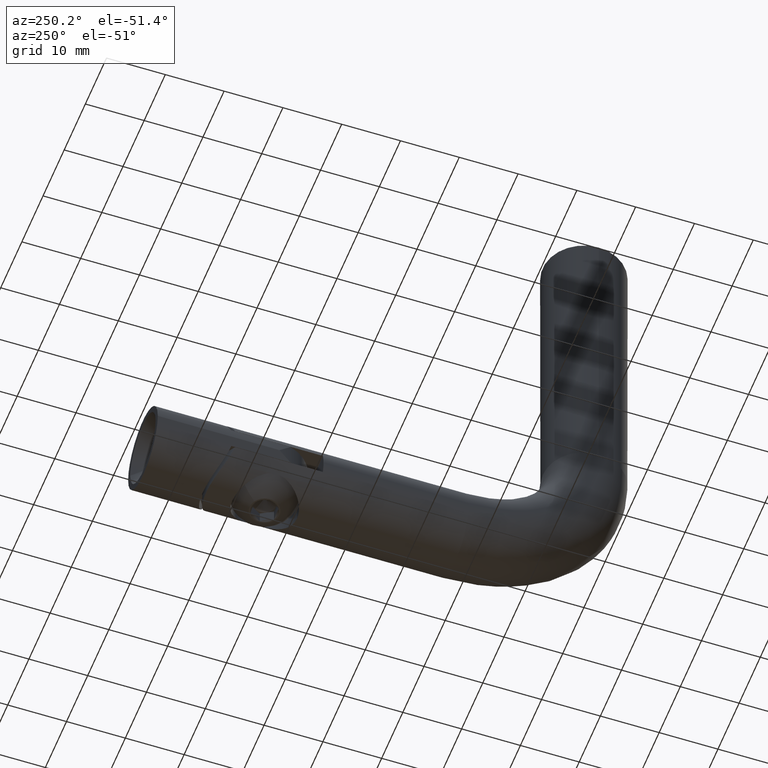
[diagram: clean part render]
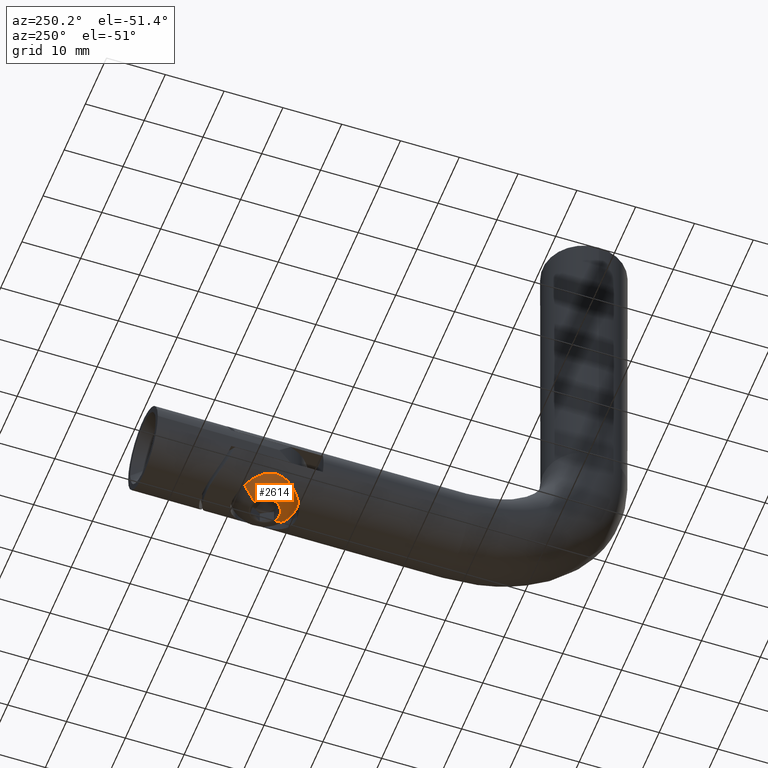
[diagram: same view with one face highlighted and labeled with its STEP entity id]
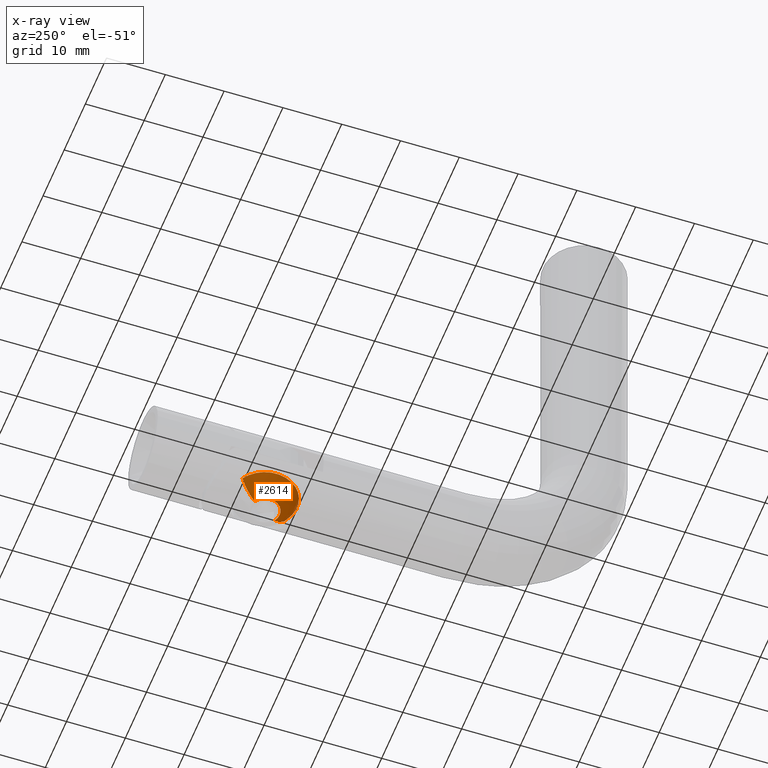
[diagram: x-ray of the same camera — body ghosted, the highlighted face saturated]
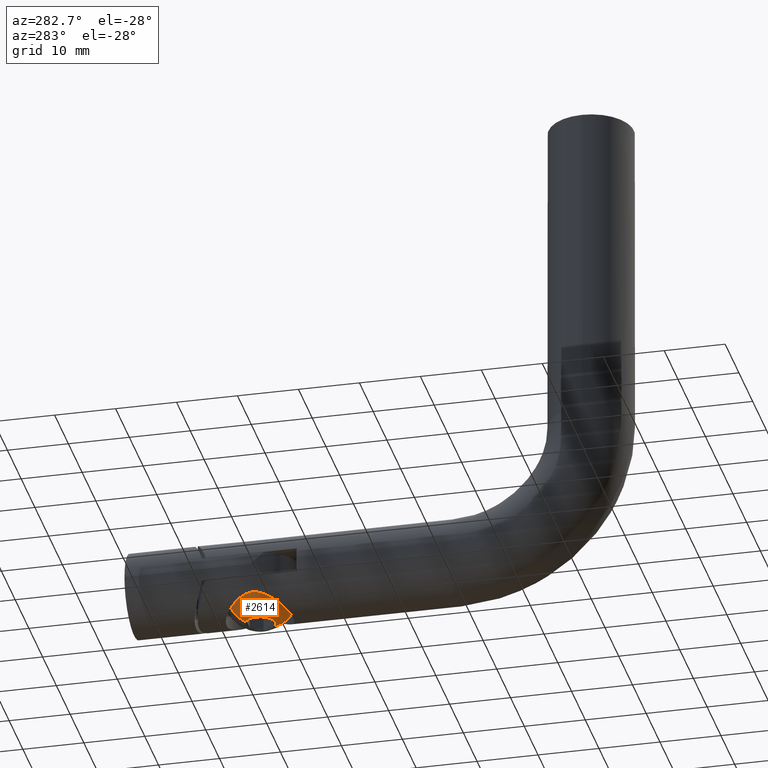
[diagram: same view with one face highlighted and labeled with its STEP entity id]
A machine part, auxiliary view. The second image highlights one B-rep face of the part: STEP entity #2614.
The next image is the same camera in x-ray: the body ghosted, the highlighted face saturated — about 0% of this face is hidden behind the body in this view.
A second angle (auxiliary view) of the same face is appended — the face is thin or edge-on in the first view.
In plain terms, the highlighted spherical surface has radius 5.9808 mm.
Its self-contained STEP definition (entity closure, byte-faithful):
#186 = ORIENTED_EDGE ( 'NONE', *, *, #10918, .T. ) ;
#794 = AXIS2_PLACEMENT_3D ( 'NONE', #5031, #14496, #13353 ) ;
#878 = CIRCLE ( 'NONE', #3665, 5.499999999999999112 ) ;
#1717 = CARTESIAN_POINT ( 'NONE',  ( 0.000000000000000000, 5.410897076899054525, 0.000000000000000000 ) ) ;
#2001 = DIRECTION ( 'NONE',  ( 0.000000000000000000, -1.000000000000000000, 0.000000000000000000 ) ) ;
#2245 = ORIENTED_EDGE ( 'NONE', *, *, #9765, .F. ) ;
#2614 = ADVANCED_FACE ( 'NONE', ( #3941 ), #9793, .T. ) ;
#2873 = CARTESIAN_POINT ( 'NONE',  ( 0.000000000000000000, 3.061350000000004457, 0.000000000000000000 ) ) ;
#2879 = CARTESIAN_POINT ( 'NONE',  ( -2.548051076758502731, 0.000000000000000000, 4.928009995263354294E-16 ) ) ;
#2986 = DIRECTION ( 'NONE',  ( 9.030652045888136138E-37, 0.000000000000000000, 1.000000000000000000 ) ) ;
#3168 = CARTESIAN_POINT ( 'NONE',  ( 0.000000000000000000, 0.000000000000000000, 0.000000000000000000 ) ) ;
#3665 = AXIS2_PLACEMENT_3D ( 'NONE', #2873, #8536, #7368 ) ;
#3814 = EDGE_LOOP ( 'NONE', ( #9676, #186, #12417, #14777, #2245 ) ) ;
#3941 = FACE_OUTER_BOUND ( 'NONE', #3814, .T. ) ;
#3976 = CARTESIAN_POINT ( 'NONE',  ( 5.500000000000000000, 3.061350000000004457, -4.966858625238474792E-36 ) ) ;
#4288 = AXIS2_PLACEMENT_3D ( 'NONE', #8721, #12376, #12427 ) ;
#4358 = CIRCLE ( 'NONE', #794, 5.980833676550860289 ) ;
#4636 = AXIS2_PLACEMENT_3D ( 'NONE', #8848, #2986, #12342 ) ;
#4799 = VERTEX_POINT ( 'NONE', #6477 ) ;
#5031 = CARTESIAN_POINT ( 'NONE',  ( 0.000000000000000000, 5.410897076899054525, 0.000000000000000000 ) ) ;
#5804 = CIRCLE ( 'NONE', #4288, 5.499999999999999112 ) ;
#6477 = CARTESIAN_POINT ( 'NONE',  ( 2.548051076758502731, 0.000000000000000000, -3.633957446087069283E-36 ) ) ;
#7368 = DIRECTION ( 'NONE',  ( 9.030652045888134467E-37, 0.000000000000000000, -1.000000000000000000 ) ) ;
#7788 = VERTEX_POINT ( 'NONE', #9232 ) ;
#8536 = DIRECTION ( 'NONE',  ( 0.000000000000000000, -1.000000000000000000, 0.000000000000000000 ) ) ;
#8721 = CARTESIAN_POINT ( 'NONE',  ( 0.000000000000000000, 3.061350000000004457, 0.000000000000000000 ) ) ;
#8740 = DIRECTION ( 'NONE',  ( -9.030652045888136138E-37, -0.000000000000000000, -1.000000000000000000 ) ) ;
#8848 = CARTESIAN_POINT ( 'NONE',  ( 0.000000000000000000, 5.410897076899054525, 0.000000000000000000 ) ) ;
#9201 = EDGE_CURVE ( 'NONE', #13824, #4799, #13710, .T. ) ;
#9232 = CARTESIAN_POINT ( 'NONE',  ( -5.500000000000000000, 3.061350000000004457, 6.735557395310442023E-16 ) ) ;
#9666 = CARTESIAN_POINT ( 'NONE',  ( 4.966858625238474792E-36, 3.061350000000004457, -5.500000000000000000 ) ) ;
#9676 = ORIENTED_EDGE ( 'NONE', *, *, #10968, .F. ) ;
#9765 = EDGE_CURVE ( 'NONE', #13038, #4799, #13166, .T. ) ;
#9793 = SPHERICAL_SURFACE ( 'NONE', #4636, 5.980833676550860289 ) ;
#10918 = EDGE_CURVE ( 'NONE', #7788, #13465, #878, .T. ) ;
#10968 = EDGE_CURVE ( 'NONE', #7788, #13038, #4358, .T. ) ;
#11279 = DIRECTION ( 'NONE',  ( 9.030652045888136138E-37, 0.000000000000000000, -1.000000000000000000 ) ) ;
#11870 = AXIS2_PLACEMENT_3D ( 'NONE', #1717, #8740, #13364 ) ;
#12342 = DIRECTION ( 'NONE',  ( 1.000000000000000000, 0.000000000000000000, -9.030652045888136138E-37 ) ) ;
#12376 = DIRECTION ( 'NONE',  ( 0.000000000000000000, -1.000000000000000000, 0.000000000000000000 ) ) ;
#12417 = ORIENTED_EDGE ( 'NONE', *, *, #14694, .T. ) ;
#12427 = DIRECTION ( 'NONE',  ( 9.030652045888134467E-37, 0.000000000000000000, -1.000000000000000000 ) ) ;
#13038 = VERTEX_POINT ( 'NONE', #2879 ) ;
#13166 = CIRCLE ( 'NONE', #13626, 2.548051076758502287 ) ;
#13353 = DIRECTION ( 'NONE',  ( 1.000000000000000000, 0.000000000000000000, -1.224646799147352961E-16 ) ) ;
#13364 = DIRECTION ( 'NONE',  ( -1.000000000000000000, 0.000000000000000000, 9.030652045888136138E-37 ) ) ;
#13465 = VERTEX_POINT ( 'NONE', #9666 ) ;
#13626 = AXIS2_PLACEMENT_3D ( 'NONE', #3168, #2001, #11279 ) ;
#13710 = CIRCLE ( 'NONE', #11870, 5.980833676550860289 ) ;
#13824 = VERTEX_POINT ( 'NONE', #3976 ) ;
#14496 = DIRECTION ( 'NONE',  ( 1.224646799147353207E-16, 0.000000000000000000, 1.000000000000000000 ) ) ;
#14694 = EDGE_CURVE ( 'NONE', #13465, #13824, #5804, .T. ) ;
#14777 = ORIENTED_EDGE ( 'NONE', *, *, #9201, .T. ) ;